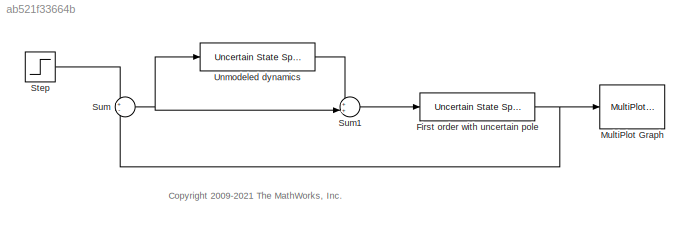
MODEL slx_ab521f33664b
KIND model
CONFIG AbsTol = auto
CONFIG EnableMultiTasking = on
CONFIG FixedStep = auto
CONFIG MaxStep = auto
CONFIG MinStep = auto
CONFIG PreLoadFcn = input_unc = ultidyn('input_unc',[1 1]);\nwt = makeweight(0.25,130,2.5);\nunc_sys = ss(ureal('a',-1,'Range',[-2 -.5]),1,5,0);\nvals = [];\n
CONFIG RelTol = 1e-3
CONFIG SampleTimeConstraint = Unconstrained
CONFIG SolverName = ode45
CONFIG StartTime = 0.0
CONFIG StopTime = 10.0
BLOCK [Reference] First order with uncertain pole  REF=RCTblocks/Uncertain State Space
  SourceBlock = RCTblocks/Uncertain State Space
  SourceType = Uncertain State Space Block
  Tag = USS
BLOCK [Reference] MultiPlot Graph  REF=RCTblocks/MultiPlot Graph
  SourceBlock = RCTblocks/MultiPlot Graph
  SourceType = MultiPlot Graph
  Tag = MultiPlot
BLOCK [Step] Step
  SampleTime = 0
BLOCK [Sum] Sum
  Inputs = +-
BLOCK [Sum] Sum1
  Inputs = ++|
BLOCK [Reference] Unmodeled dynamics  REF=RCTblocks/Uncertain State Space
  SourceBlock = RCTblocks/Uncertain State Space
  SourceType = Uncertain State Space Block
  Tag = USS
ANNOTATION (root): <copyright redacted>
NET First order with uncertain pole:1 -> MultiPlot Graph:1, Sum:2
LINE Step:1 -> Sum:1
LINE Sum1:1 -> First order with uncertain pole:1
NET Sum:1 -> Sum1:2, Unmodeled dynamics:1
LINE Unmodeled dynamics:1 -> Sum1:1
note: NET lines group one-source signal fan-out (src -> all destinations, sorted); 1:1 wires keep LINE
